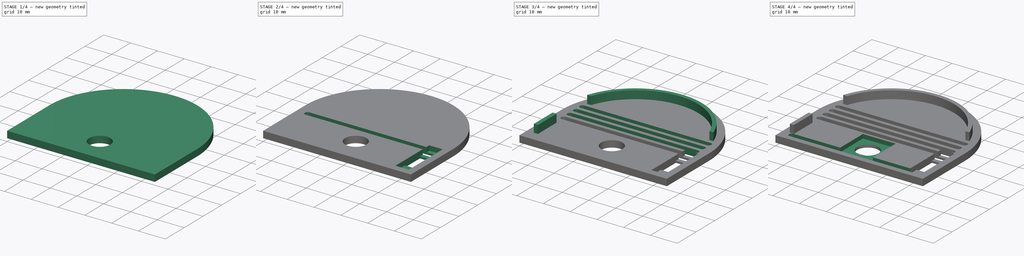
[diagram: build sequence overview — one tinted view per stage of 4, left to right]
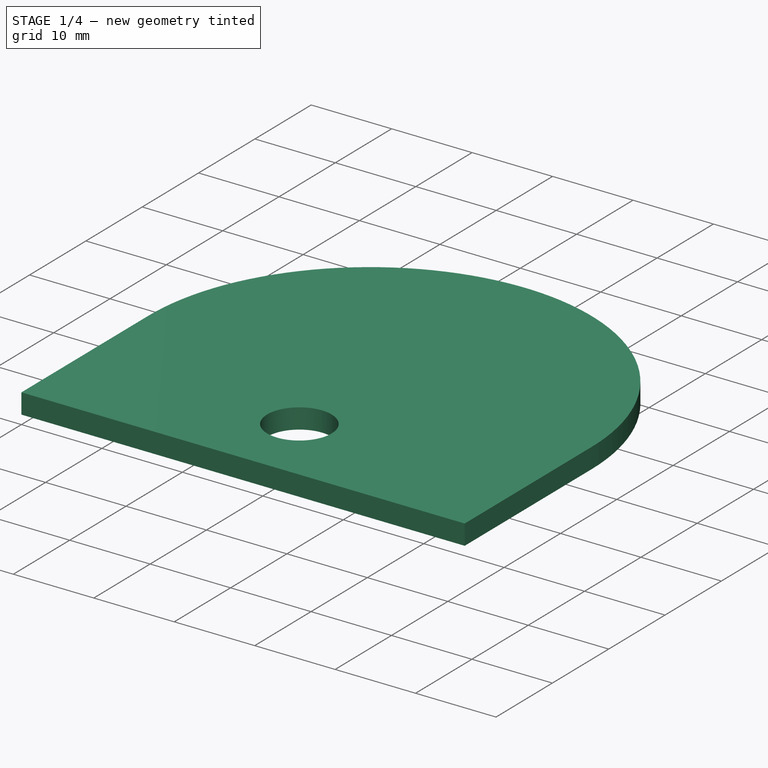
[diagram: stage 1 of 4 — iso view after this stage's code; geometry added in this stage tinted green]
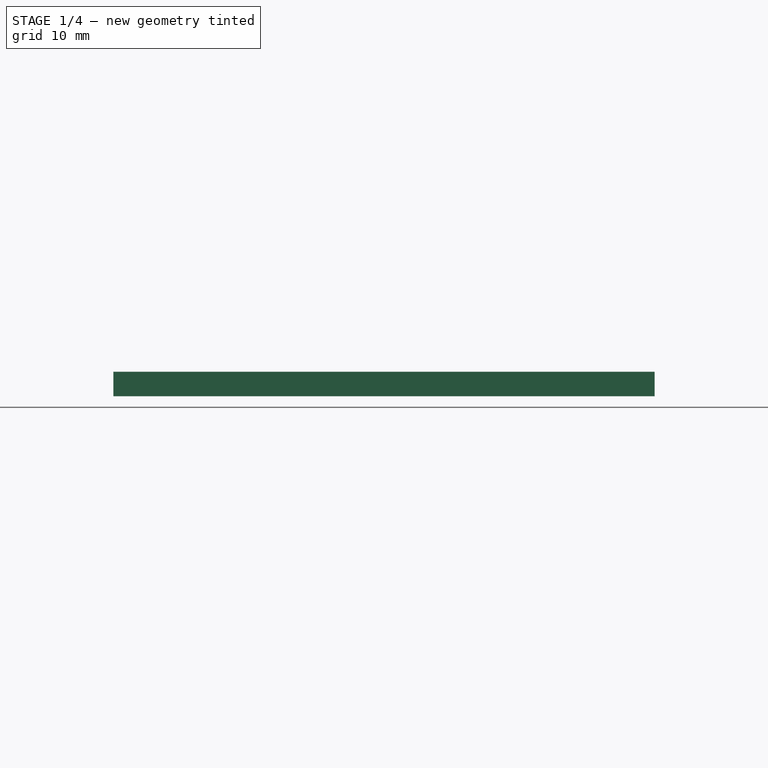
[diagram: stage 1 of 4 — front view after this stage's code; geometry added in this stage tinted green]
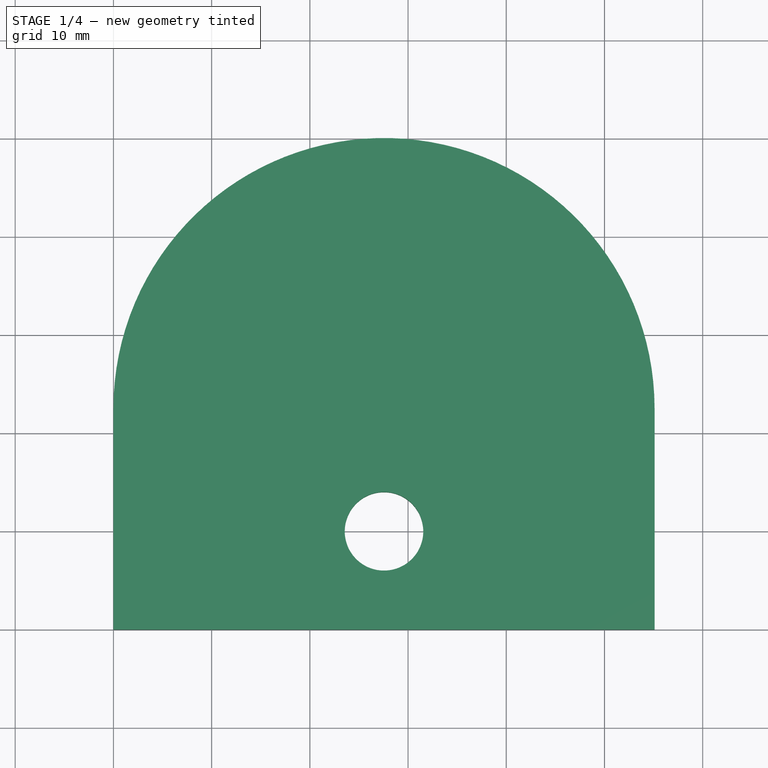
[diagram: stage 1 of 4 — top view after this stage's code; geometry added in this stage tinted green]
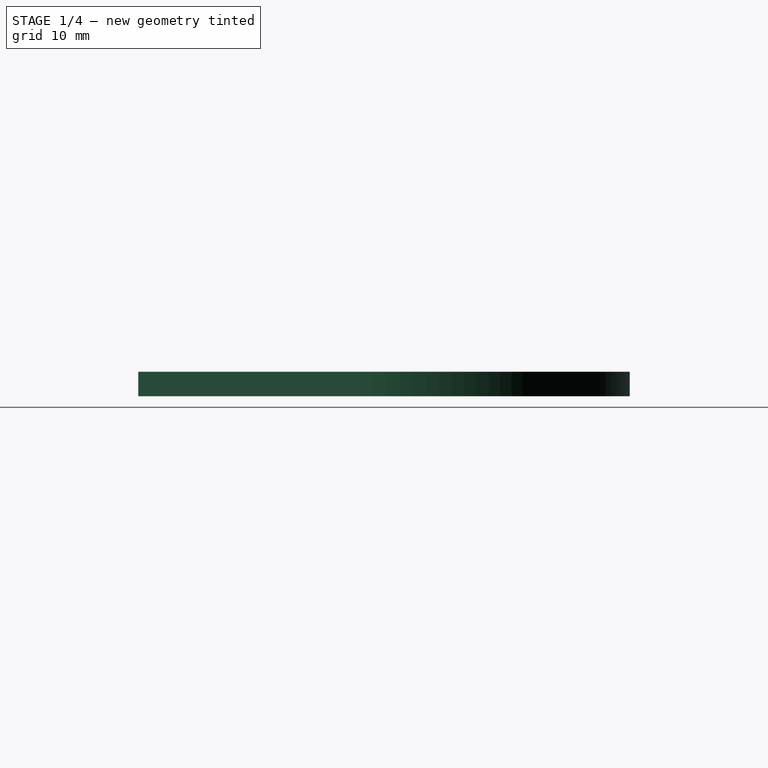
[diagram: stage 1 of 4 — right view after this stage's code; geometry added in this stage tinted green]
FCSTD DOCUMENT  (FreeCAD 0.18.4R)
Label: AirQProjectLeftLid
License: All rights reserved
LicenseURL: http://en.wikipedia.org/wiki/All_rights_reserved
objects: Sketcher::SketchObject×9, PartDesign::Pocket×6, PartDesign::Pad×3, PartDesign::LinearPattern×1, PartDesign::Body×1
note: 29 computed .brp shape members not serialized (recipe doc carries the construction recipe); baked Part::Feature solids carry a one-line shape summary decoded from their .brp

FEATURE [Sketcher::SketchObject] CopySketch
  sketch-geometry (4):
    g0: LineSegment StartX=55.1 StartY=22.5 StartZ=0 EndX=55.1 EndY=0 EndZ=0
    g1: LineSegment StartX=55.1 StartY=0 StartZ=0 EndX=0 EndY=0 EndZ=0
    g2: LineSegment StartX=0 StartY=0 StartZ=0 EndX=0 EndY=22.5001 EndZ=0
    g3: ArcOfCircle CenterX=27.55 CenterY=22.5 CenterZ=0 NormalX=0 NormalY=0 NormalZ=1 AngleXU=0 Radius=27.55 StartAngle=6.28318 EndAngle=9.42478
  constraints (11):
    c: Coincident(g0,g1)
    c: Coincident(g1,g2)
    c: Horizontal(g1)
    c: Vertical(g0)
    c: Vertical(g2)
    c: Coincident(g2,g3)
    c: Coincident(g0,g3)
    c: DistanceX(g1,g1) = 55.1
    c: DistanceY(g0,g0) = 22.5
    c: Coincident(g1,g-1)
    c: Radius(g3) = 27.55
FEATURE [PartDesign::Pad] Pad
  Length = 2.5
  Length2 = 100
  Profile = -> CopySketch
  Type = 0
FEATURE [Sketcher::SketchObject] Sketch
  ExternalGeometry = -> [Pad]
  MapMode = 5
  Placement = pos=(0,0,2.5) rot=(0,0,1;0rad)
  Support = -> [Pad]
  sketch-geometry (1):
    g0: Circle CenterX=27.55 CenterY=10 CenterZ=0 NormalX=0 NormalY=0 NormalZ=1 AngleXU=0 Radius=4
  constraints (3):
    c: Radius(g0) = 4
    c: DistanceX(g-1,g0) = 27.55
    c: DistanceY(g-1,g0) = 10
FEATURE [PartDesign::Pocket] Pocket
  BaseFeature = -> Pad
  Length = 5
  Length2 = 100
  Profile = -> Sketch
  Type = 2
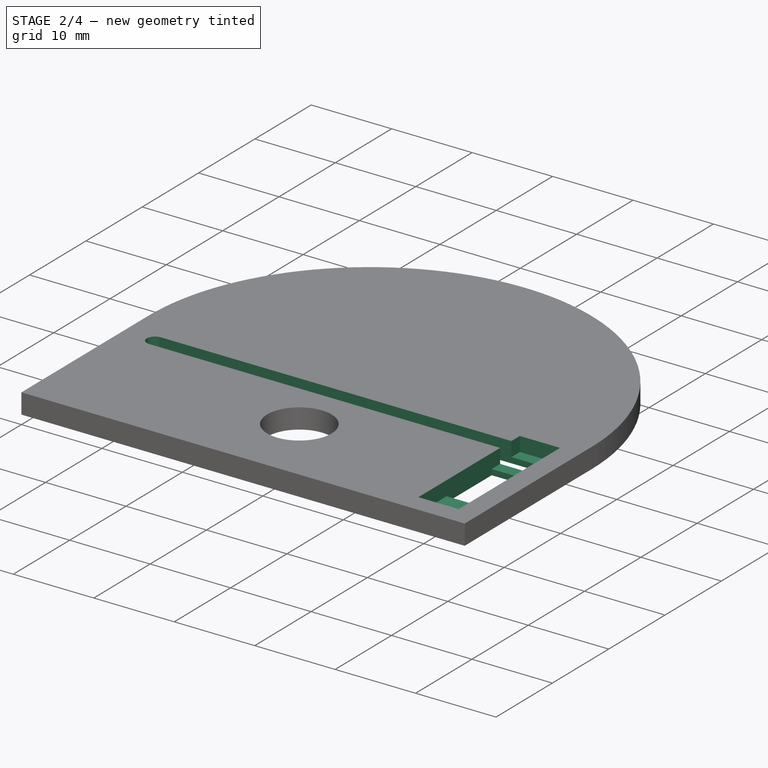
[diagram: stage 2 of 4 — iso view after this stage's code; geometry added in this stage tinted green]
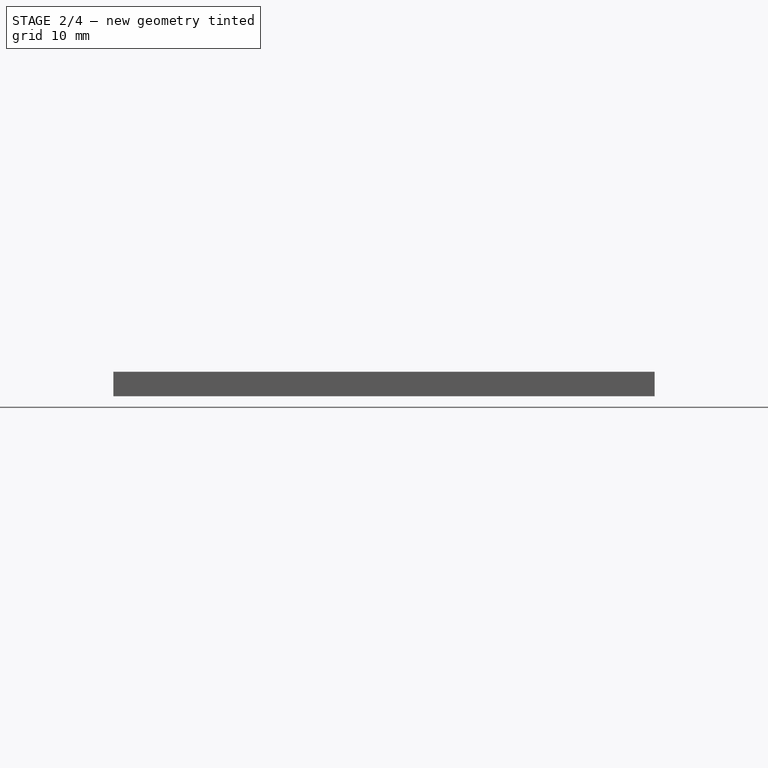
[diagram: stage 2 of 4 — front view after this stage's code; geometry added in this stage tinted green]
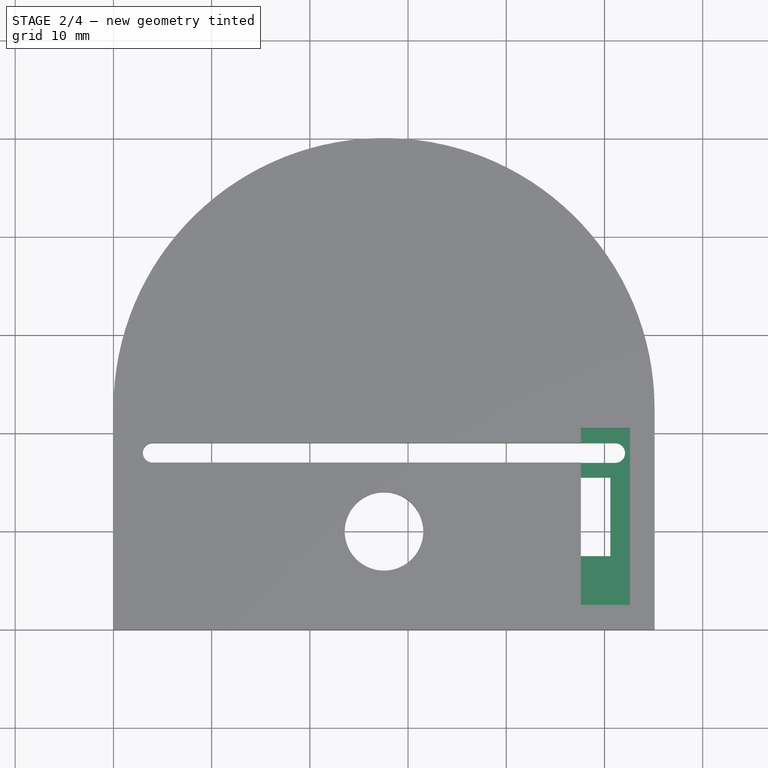
[diagram: stage 2 of 4 — top view after this stage's code; geometry added in this stage tinted green]
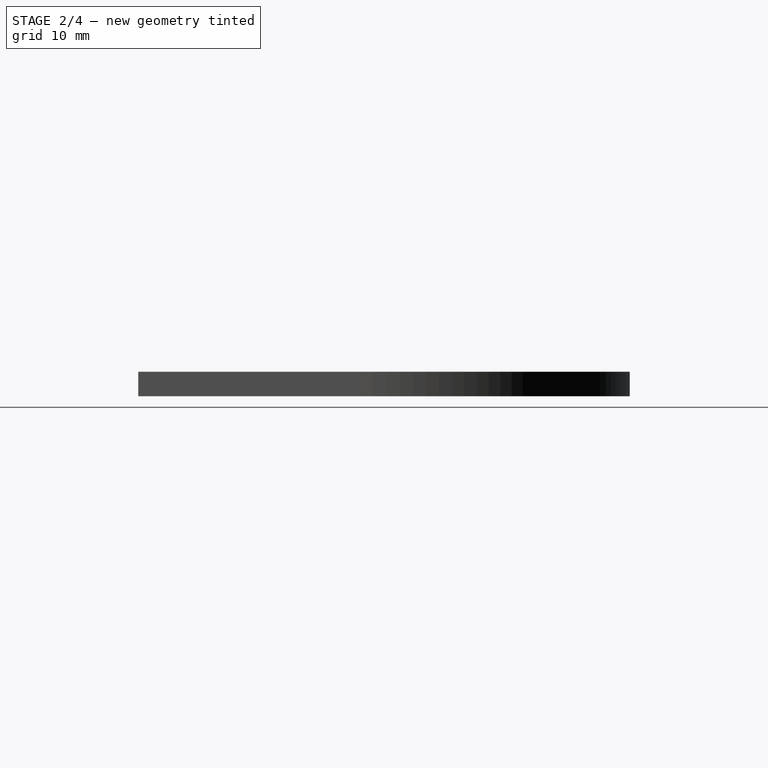
[diagram: stage 2 of 4 — right view after this stage's code; geometry added in this stage tinted green]
FEATURE [Sketcher::SketchObject] Sketch001
  ExternalGeometry = -> [Pocket]
  MapMode = 5
  Placement = pos=(0,0,2.5) rot=(0,0,1;0rad)
  Support = -> [Pocket]
  sketch-geometry (4):
    g0: LineSegment StartX=47.6 StartY=20.5 StartZ=0 EndX=52.6 EndY=20.5 EndZ=0
    g1: LineSegment StartX=52.6 StartY=20.5 StartZ=0 EndX=52.6 EndY=2.5 EndZ=0
    g2: LineSegment StartX=52.6 StartY=2.5 StartZ=0 EndX=47.6 EndY=2.5 EndZ=0
    g3: LineSegment StartX=47.6 StartY=2.5 StartZ=0 EndX=47.6 EndY=20.5 EndZ=0
  constraints (12):
    c: Coincident(g0,g1)
    c: Coincident(g1,g2)
    c: Coincident(g2,g3)
    c: Coincident(g3,g0)
    c: Horizontal(g0)
    c: Horizontal(g2)
    c: Vertical(g1)
    c: Vertical(g3)
    c: DistanceY(g1,g1) = 18
    c: DistanceX(g0,g0) = 5
    c: DistanceX(g0,g-3) = 2.5
    c: DistanceY(g-3,g1) = 2.5
FEATURE [PartDesign::Pocket] Pocket001
  BaseFeature = -> Pocket
  Length = 1.8
  Length2 = 100
  Profile = -> Sketch001
  Type = 0
FEATURE [Sketcher::SketchObject] Sketch002
  ExternalGeometry = -> [Pocket001]
  MapMode = 5
  Placement = pos=(0,0,0.7) rot=(0,0,1;0rad)
  Support = -> [Pocket001]
  sketch-geometry (4):
    g0: LineSegment StartX=47.6 StartY=15.5 StartZ=0 EndX=50.6 EndY=15.5 EndZ=0
    g1: LineSegment StartX=50.6 StartY=15.5 StartZ=0 EndX=50.6 EndY=7.5 EndZ=0
    g2: LineSegment StartX=50.6 StartY=7.5 StartZ=0 EndX=47.6 EndY=7.5 EndZ=0
    g3: LineSegment StartX=47.6 StartY=7.5 StartZ=0 EndX=47.6 EndY=15.5 EndZ=0
  constraints (12):
    c: Coincident(g0,g1)
    c: Coincident(g1,g2)
    c: Coincident(g2,g3)
    c: Coincident(g3,g0)
    c: Horizontal(g0)
    c: Horizontal(g2)
    c: Vertical(g1)
    c: Vertical(g3)
    c: DistanceX(g0,g0) = 3
    c: DistanceY(g1,g1) = 8
    c: DistanceY(g-6,g1) = 5
    c: DistanceX(g0,g-4) = 2
FEATURE [PartDesign::Pocket] Pocket002
  BaseFeature = -> Pocket001
  Length = 5
  Length2 = 100
  Profile = -> Sketch002
  Type = 2
FEATURE [Sketcher::SketchObject] CopySketch003
  Placement = pos=(0,0,0) rot=(1,0,0;3.14159rad)
  sketch-geometry (4):
    g0: ArcOfCircle CenterX=4 CenterY=-3 CenterZ=0 NormalX=0 NormalY=0 NormalZ=1 AngleXU=0 Radius=1 StartAngle=1.5708 EndAngle=4.71239
    g1: ArcOfCircle CenterX=50.6193 CenterY=-3 CenterZ=0 NormalX=0 NormalY=0 NormalZ=1 AngleXU=0 Radius=1 StartAngle=4.71239 EndAngle=7.85398
    g2: LineSegment StartX=4 StartY=-4 StartZ=0 EndX=50.6193 EndY=-4 EndZ=0
    g3: LineSegment StartX=4 StartY=-2 StartZ=0 EndX=50.6193 EndY=-2 EndZ=0
  constraints (9):
    c: Tangent(g0,g3) = 1.5708
    c: Tangent(g0,g2) = -1.5708
    c: Tangent(g2,g1) = -1.5708
    c: Tangent(g3,g1) = 1.5708
    c: Horizontal(g2)
    c: Equal(g0,g1)
    c: Radius(g1) = 1
    c: DistanceX(g-1,g0) = 4
    c: DistanceY(g0,g-1) = 3
FEATURE [Sketcher::SketchObject] CopyCopySketch003
  Placement = pos=(0,0,0) rot=(1,0,0;3.14159rad)
  sketch-geometry (4):
    g0: ArcOfCircle CenterX=4 CenterY=-18 CenterZ=0 NormalX=0 NormalY=0 NormalZ=1 AngleXU=0 Radius=1 StartAngle=1.5708 EndAngle=4.71239
    g1: ArcOfCircle CenterX=51.0933 CenterY=-18 CenterZ=0 NormalX=0 NormalY=0 NormalZ=1 AngleXU=0 Radius=1 StartAngle=4.71239 EndAngle=7.85398
    g2: LineSegment StartX=4 StartY=-19 StartZ=0 EndX=51.0933 EndY=-19 EndZ=0
    g3: LineSegment StartX=4 StartY=-17 StartZ=0 EndX=51.0933 EndY=-17 EndZ=0
  constraints (9):
    c: Tangent(g0,g3) = 1.5708
    c: Tangent(g0,g2) = -1.5708
    c: Tangent(g2,g1) = -1.5708
    c: Tangent(g3,g1) = 1.5708
    c: Horizontal(g2)
    c: Equal(g0,g1)
    c: Radius(g1) = 1
    c: DistanceX(g-1,g0) = 4
    c: DistanceY(g0,g-1) = 18
FEATURE [PartDesign::Pocket] Pocket003
  BaseFeature = -> Pocket002
  Length = 5
  Length2 = 100
  Profile = -> CopyCopySketch003
  Type = 1
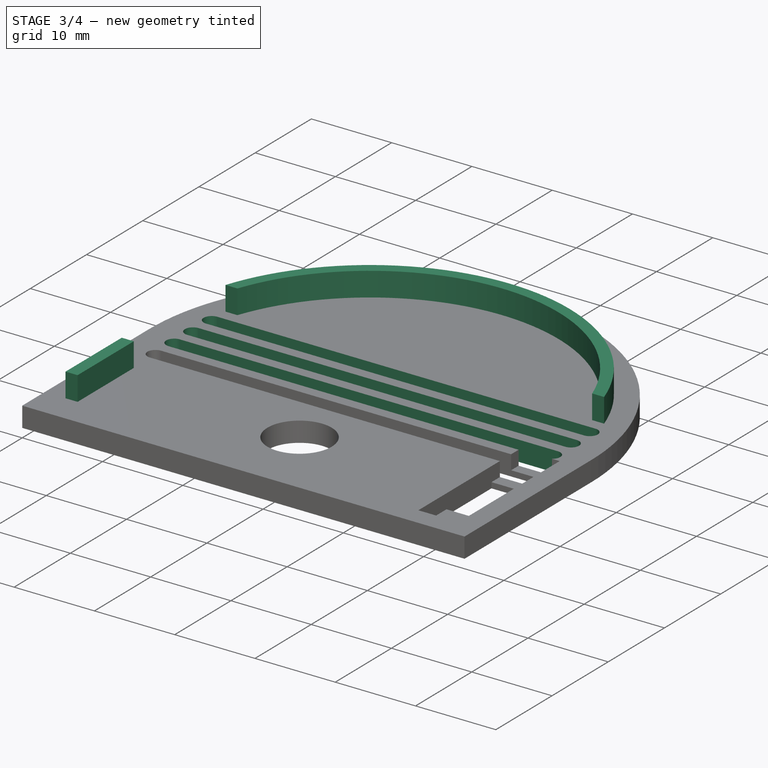
[diagram: stage 3 of 4 — iso view after this stage's code; geometry added in this stage tinted green]
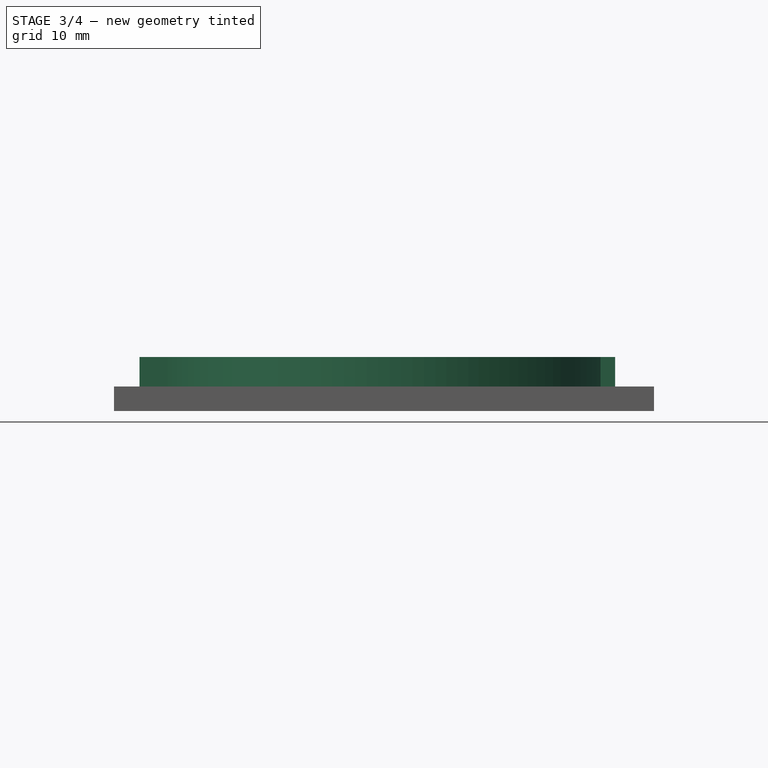
[diagram: stage 3 of 4 — front view after this stage's code; geometry added in this stage tinted green]
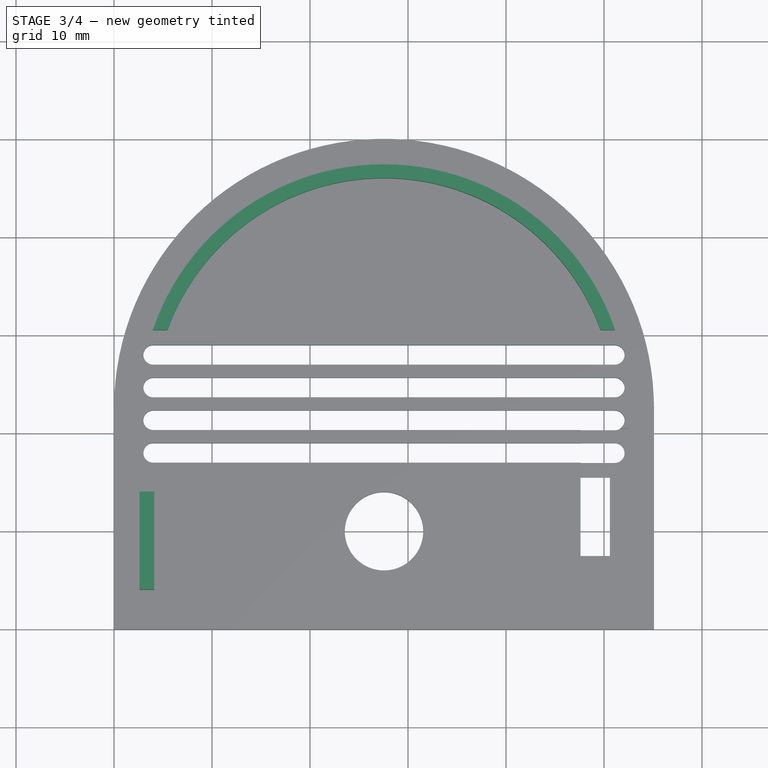
[diagram: stage 3 of 4 — top view after this stage's code; geometry added in this stage tinted green]
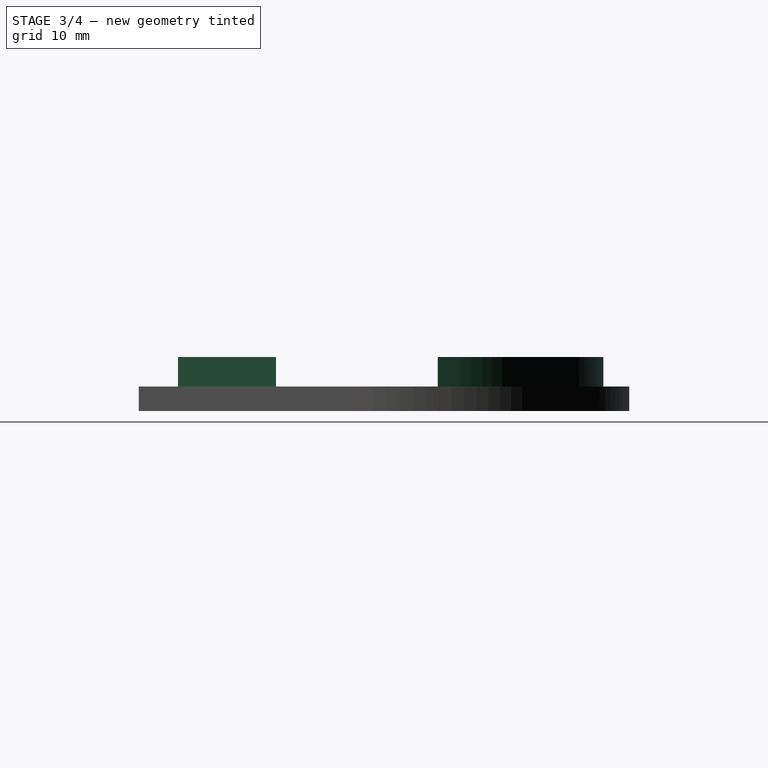
[diagram: stage 3 of 4 — right view after this stage's code; geometry added in this stage tinted green]
FEATURE [PartDesign::LinearPattern] LinearPattern
  BaseFeature = -> Pocket003
  Direction = -> Y_Axis
  Length = 10
  Occurrences = 4
  Originals = -> [Pocket003]
FEATURE [Sketcher::SketchObject] Sketch003
  ExternalGeometry = -> [LinearPattern]
  MapMode = 5
  Placement = pos=(0,0,2.5) rot=(0,0,1;0rad)
  Support = -> [LinearPattern]
  sketch-geometry (4):
    g0: ArcOfCircle CenterX=27.55 CenterY=22.5 CenterZ=0 NormalX=0 NormalY=0 NormalZ=1 AngleXU=0 Radius=23.5 StartAngle=0.347369 EndAngle=2.79422
    g1: ArcOfCircle CenterX=27.55 CenterY=22.5 CenterZ=0 NormalX=0 NormalY=0 NormalZ=1 AngleXU=0 Radius=24.9 StartAngle=0.327086 EndAngle=2.81451
    g2: LineSegment StartX=3.97014 StartY=30.5 StartZ=0 EndX=5.45362 EndY=30.5 EndZ=0
    g3: LineSegment StartX=49.6464 StartY=30.5 StartZ=0 EndX=51.1299 EndY=30.5 EndZ=0
  constraints (11):
    c: Coincident(g0,g-3)
    c: Radius(g-3) = 27.55
    c: Radius(g1) = 24.9
    c: Radius(g0) = 23.5
    c: Coincident(g0,g1)
    c: Parallel(g2,g-4)
    c: Tangent(g2,g3)
    c: Coincident(g1,g3)
    c: Coincident(g1,g2)
    c: PointOnObject(g2,g0)
    c: PointOnObject(g3,g0)
FEATURE [PartDesign::Pad] Pad001
  BaseFeature = -> LinearPattern
  Length = 3
  Length2 = 100
  Profile = -> Sketch003
  Type = 0
FEATURE [Sketcher::SketchObject] Sketch004
  ExternalGeometry = -> [Pad001]
  MapMode = 5
  Placement = pos=(0,0,2.5) rot=(0,0,1;0rad)
  Support = -> [Pad001]
  sketch-geometry (4):
    g0: LineSegment StartX=2.6 StartY=14 StartZ=0 EndX=4.1 EndY=14 EndZ=0
    g1: LineSegment StartX=4.1 StartY=14 StartZ=0 EndX=4.1 EndY=4 EndZ=0
    g2: LineSegment StartX=4.1 StartY=4 StartZ=0 EndX=2.6 EndY=4 EndZ=0
    g3: LineSegment StartX=2.6 StartY=4 StartZ=0 EndX=2.6 EndY=14 EndZ=0
  constraints (12):
    c: Coincident(g0,g1)
    c: Coincident(g1,g2)
    c: Coincident(g2,g3)
    c: Coincident(g3,g0)
    c: Horizontal(g0)
    c: Horizontal(g2)
    c: Vertical(g1)
    c: Vertical(g3)
    c: DistanceX(g0,g0) = 1.5
    c: DistanceX(g-1,g2) = 2.6
    c: DistanceY(g1,g1) = 10
    c: DistanceY(g-1,g2) = 4
FEATURE [PartDesign::Pad] Pad002
  BaseFeature = -> Pad001
  Length = 3
  Length2 = 100
  Profile = -> Sketch004
  Type = 0
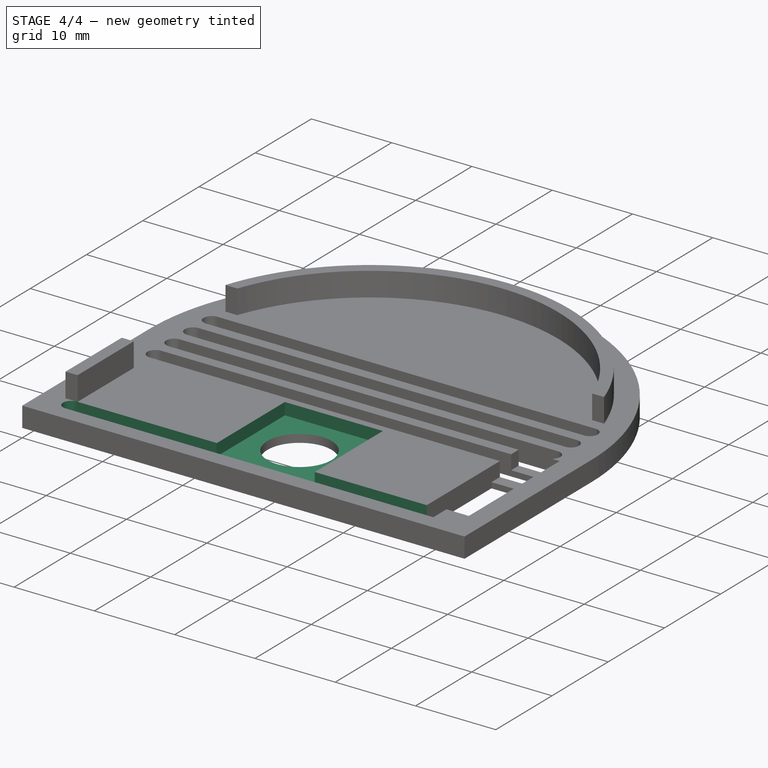
[diagram: stage 4 of 4 — iso view after this stage's code; geometry added in this stage tinted green]
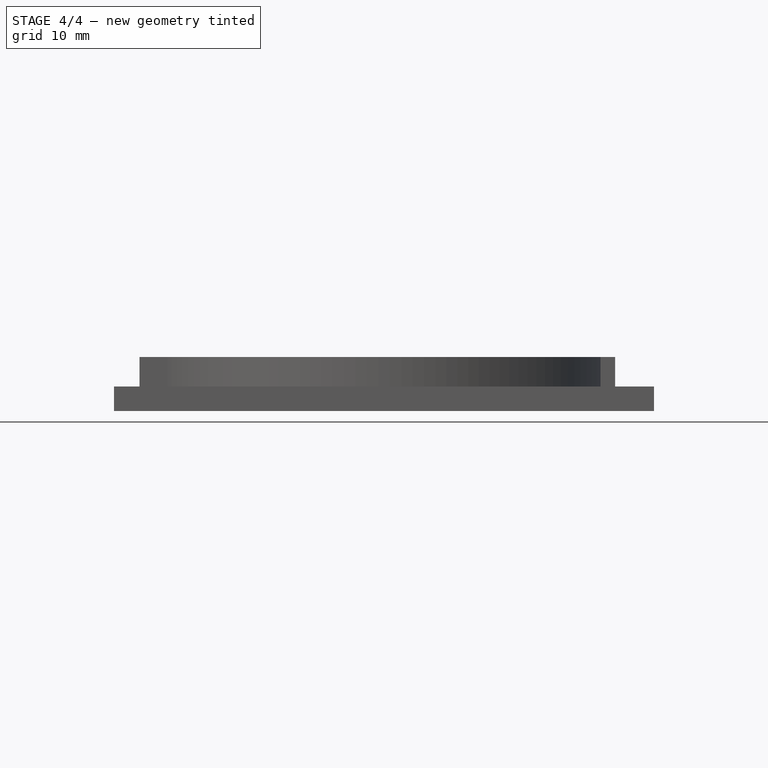
[diagram: stage 4 of 4 — front view after this stage's code; geometry added in this stage tinted green]
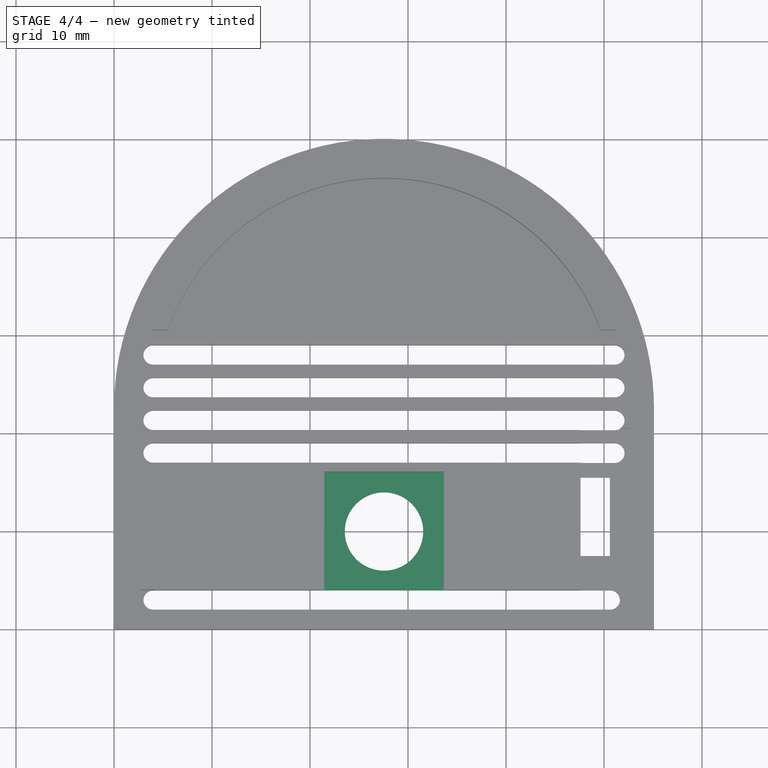
[diagram: stage 4 of 4 — top view after this stage's code; geometry added in this stage tinted green]
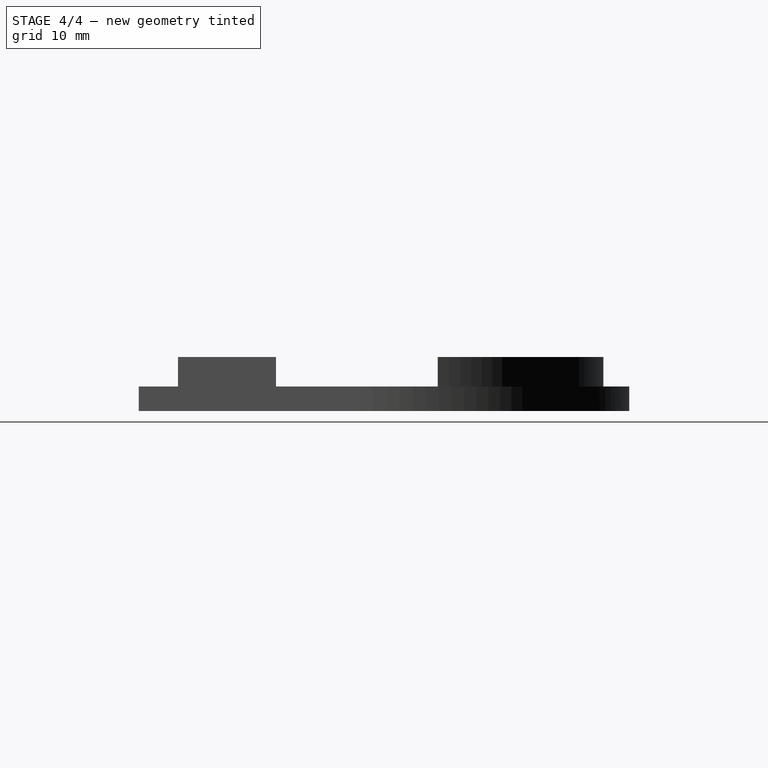
[diagram: stage 4 of 4 — right view after this stage's code; geometry added in this stage tinted green]
FEATURE [PartDesign::Pocket] Pocket004
  BaseFeature = -> Pad002
  Length = 5
  Length2 = 100
  Profile = -> CopySketch003
  Type = 1
FEATURE [Sketcher::SketchObject] Sketch005
  ExternalGeometry = -> [Pocket004]
  MapMode = 5
  Placement = pos=(0,0,2.5) rot=(0,0,1;0rad)
  Support = -> [Pocket004]
  sketch-geometry (4):
    g0: LineSegment StartX=21.45 StartY=16.1 StartZ=0 EndX=33.65 EndY=16.1 EndZ=0
    g1: LineSegment StartX=33.65 StartY=16.1 StartZ=0 EndX=33.65 EndY=3.9 EndZ=0
    g2: LineSegment StartX=33.65 StartY=3.9 StartZ=0 EndX=21.45 EndY=3.9 EndZ=0
    g3: LineSegment StartX=21.45 StartY=3.9 StartZ=0 EndX=21.45 EndY=16.1 EndZ=0
  constraints (14):
    c: Coincident(g0,g1)
    c: Coincident(g1,g2)
    c: Coincident(g2,g3)
    c: Coincident(g3,g0)
    c: Horizontal(g0)
    c: Horizontal(g2)
    c: Vertical(g1)
    c: Vertical(g3)
    c: Equal(g0,g1)
    c: Equal(g1,g2)
    c: Equal(g2,g3)
    c: DistanceX(g0,g0) = 12.2
    c: DistanceX(g0,g-3) = 6.1
    c: DistanceY(g-3,g0) = 6.1
FEATURE [PartDesign::Pocket] Pocket005
  BaseFeature = -> Pocket004
  Length = 1.5
  Length2 = 100
  Profile = -> Sketch005
  Type = 0
FEATURE [PartDesign::Body] Body
  Group = -> [Pad,Sketch,Pocket,Sketch001,Pocket001,Sketch002,Pocket002,Pocket003,LinearPattern,Sketch003,Pad001,Sketch004,CopySketch003,Pad002,Pocket004,Sketch005,Pocket005]
  Origin = -> Origin
  Tip = -> Pocket005
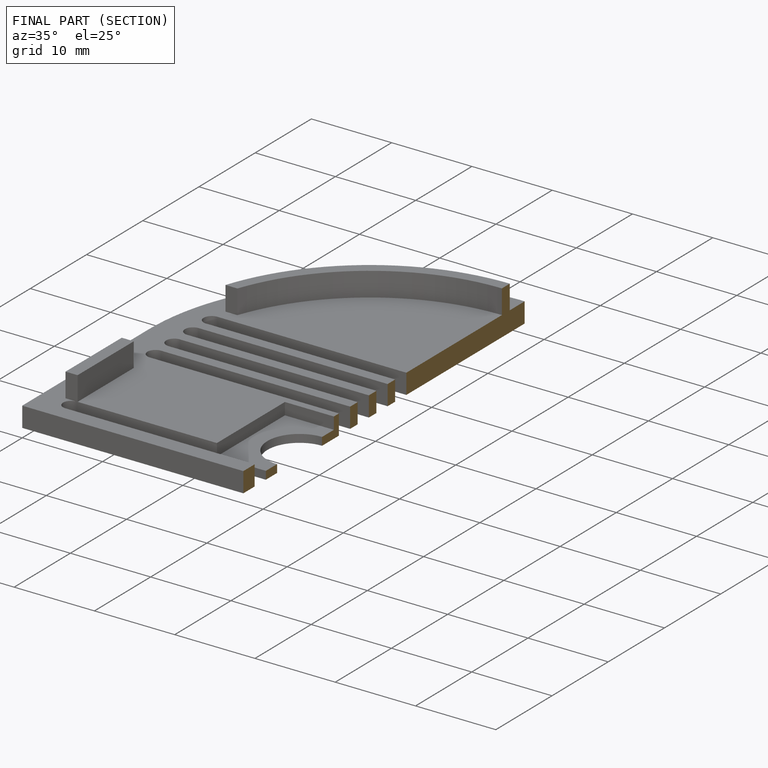
[diagram: finished part — half-section view (interior)]
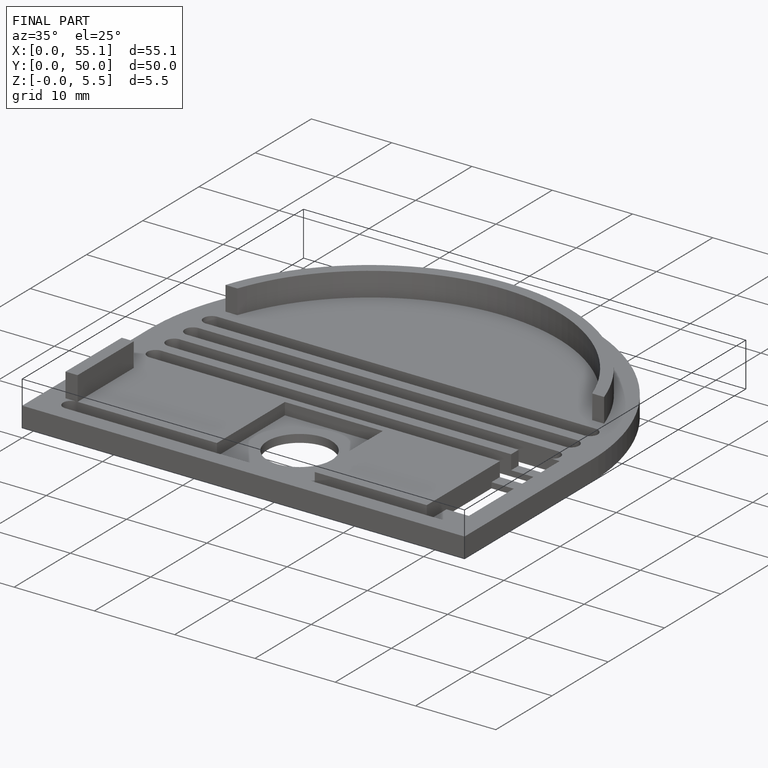
[diagram: finished part — iso view with bounding-box wireframe]
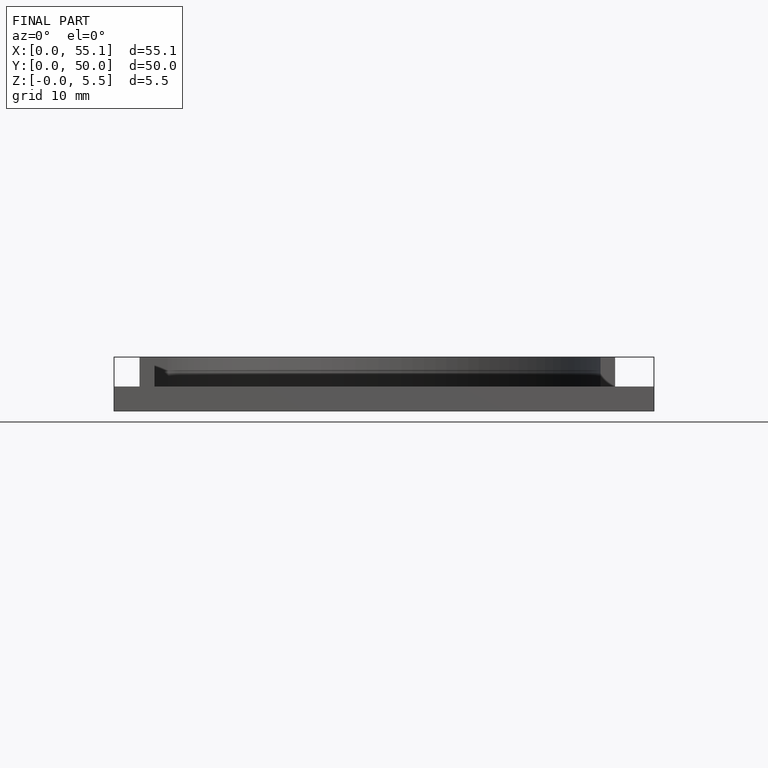
[diagram: finished part — front view with bounding-box wireframe]
